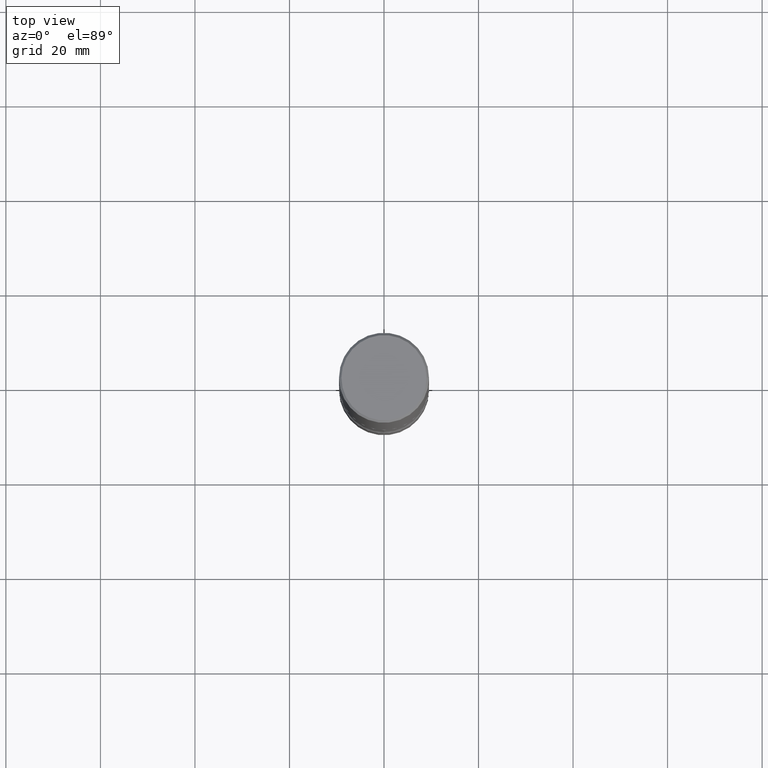
[diagram: clean part render]
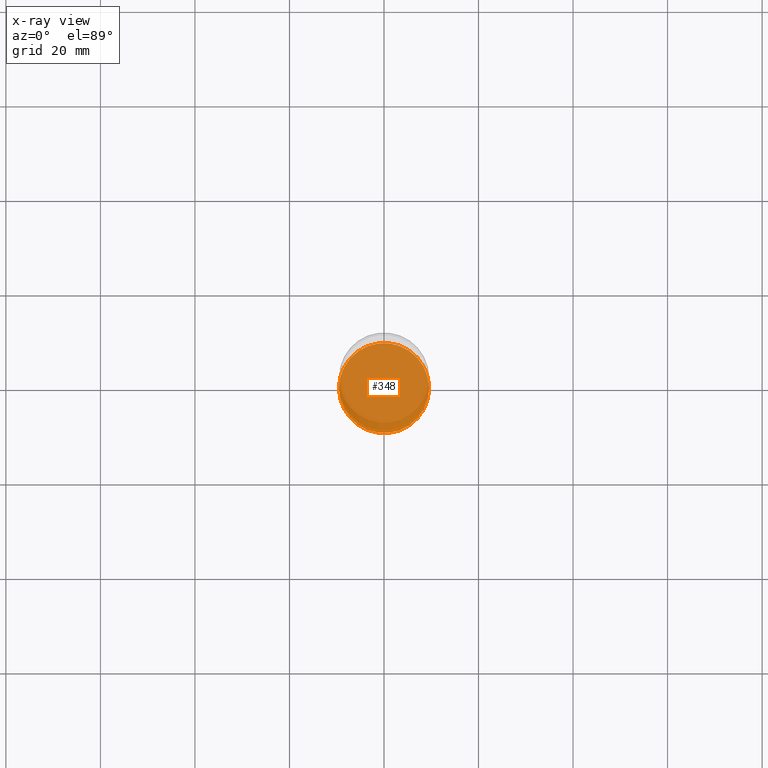
[diagram: x-ray — body ghosted, one internal face saturated and labeled with its STEP entity id]
A machine part, top view, then the same camera in x-ray: the body is ghosted and one INTERNAL B-rep face — a face not visible from any outside direction — is saturated and labeled: STEP entity #348.
In plain terms, the highlighted planar face has unit normal (0, -0, -1).
Its self-contained STEP definition (entity closure, byte-faithful):
#31 = PLANE ( 'NONE',  #283 ) ;
#33 = AXIS2_PLACEMENT_3D ( 'NONE', #284, #103, #436 ) ;
#75 = DIRECTION ( 'NONE',  ( -1.000000000000000000, 6.982962677686265922E-15, -4.876176775795935793E-29 ) ) ;
#76 = VERTEX_POINT ( 'NONE', #269 ) ;
#103 = DIRECTION ( 'NONE',  ( -2.445468806185136597E-29, 3.491481338843145583E-15, 1.000000000000000000 ) ) ;
#106 = CARTESIAN_POINT ( 'NONE',  ( 0.3750000000000002220, -2.007601769834807990E-14, -5.000000000000000000 ) ) ;
#116 = EDGE_LOOP ( 'NONE', ( #493, #446 ) ) ;
#121 = CIRCLE ( 'NONE', #33, 0.3750000000000002220 ) ;
#146 = DIRECTION ( 'NONE',  ( -2.445468806185136597E-29, 3.491481338843145583E-15, 1.000000000000000000 ) ) ;
#209 = EDGE_CURVE ( 'NONE', #76, #211, #121, .T. ) ;
#211 = VERTEX_POINT ( 'NONE', #106 ) ;
#269 = CARTESIAN_POINT ( 'NONE',  ( -0.3750000000000002220, -1.648623988445427734E-14, -5.000000000000000000 ) ) ;
#283 = AXIS2_PLACEMENT_3D ( 'NONE', #296, #498, #75 ) ;
#284 = CARTESIAN_POINT ( 'NONE',  ( 1.222734403092568523E-28, -1.745740669421572989E-14, -5.000000000000000000 ) ) ;
#296 = CARTESIAN_POINT ( 'NONE',  ( 1.222734403092568523E-28, -1.745740669421572989E-14, -5.000000000000000000 ) ) ;
#333 = FACE_OUTER_BOUND ( 'NONE', #116, .T. ) ;
#348 = ADVANCED_FACE ( 'NONE', ( #333 ), #31, .F. ) ;
#436 = DIRECTION ( 'NONE',  ( 1.000000000000000000, -6.982962677686263555E-15, 0.000000000000000000 ) ) ;
#446 = ORIENTED_EDGE ( 'NONE', *, *, #209, .T. ) ;
#468 = EDGE_CURVE ( 'NONE', #211, #76, #538, .T. ) ;
#480 = CARTESIAN_POINT ( 'NONE',  ( 1.222734403092568523E-28, -1.745740669421572989E-14, -5.000000000000000000 ) ) ;
#493 = ORIENTED_EDGE ( 'NONE', *, *, #468, .T. ) ;
#494 = DIRECTION ( 'NONE',  ( 1.000000000000000000, -6.982962677686263555E-15, 0.000000000000000000 ) ) ;
#498 = DIRECTION ( 'NONE',  ( 2.438088387897960049E-29, -3.491481338843145188E-15, -1.000000000000000000 ) ) ;
#528 = AXIS2_PLACEMENT_3D ( 'NONE', #480, #146, #494 ) ;
#538 = CIRCLE ( 'NONE', #528, 0.3750000000000002220 ) ;